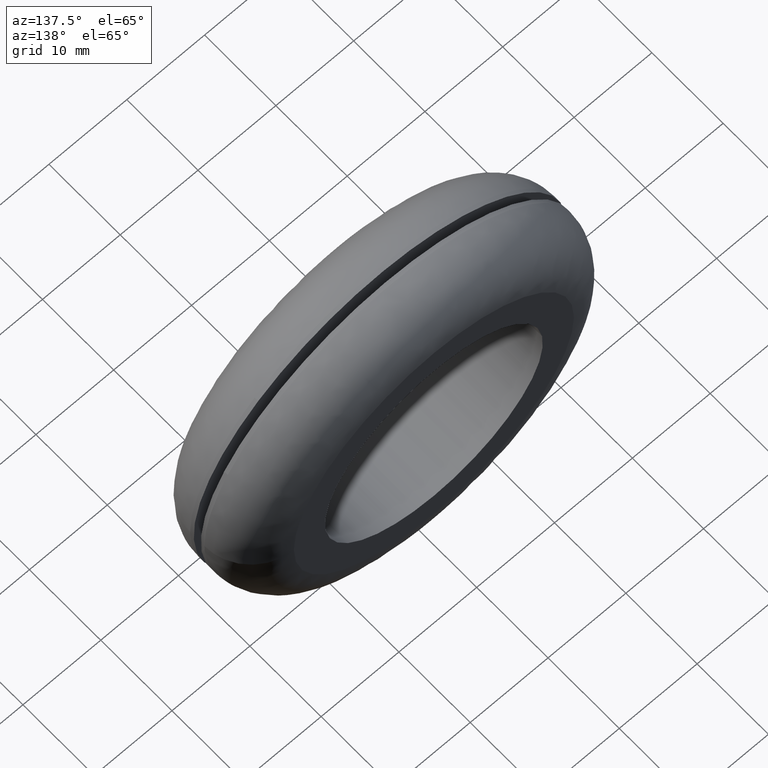
[diagram: clean part render]
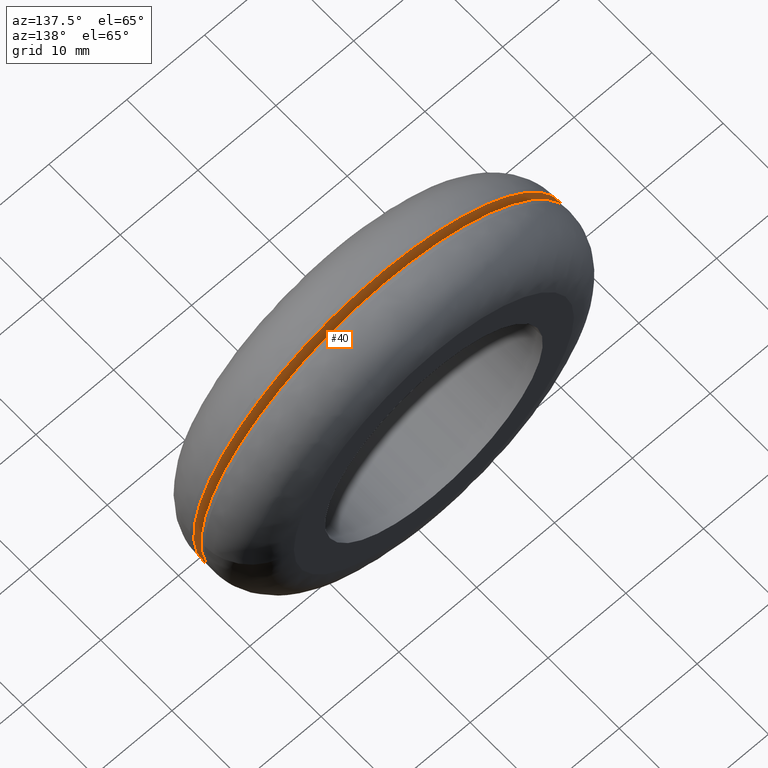
[diagram: same view with one face highlighted and labeled with its STEP entity id]
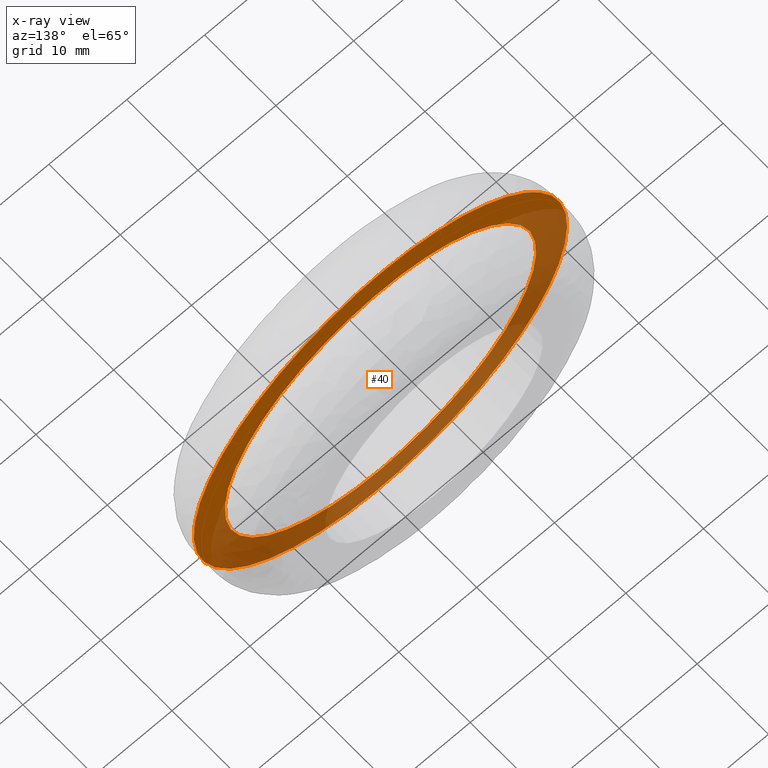
[diagram: x-ray of the same camera — body ghosted, the highlighted face saturated]
A machine part, auxiliary view. The second image highlights one B-rep face of the part: STEP entity #40.
The next image is the same camera in x-ray: the body ghosted, the highlighted face saturated — about 53% of this face is hidden behind the body in this view.
In plain terms, the highlighted planar face has unit normal (0, -1, 0).
Its self-contained STEP definition (entity closure, byte-faithful):
#40=ADVANCED_FACE('',(#57,#58),#56,.F.);
#56=PLANE('',#223);
#57=FACE_OUTER_BOUND('',#224,.T.);
#58=FACE_BOUND('',#225,.T.);
#220=CARTESIAN_POINT('',(-5.47912625963E+001,6.50000000000E+000,5.38951855374E+001));
#221=DIRECTION('',(0.00000000000E+000,-1.00000000000E+000,0.00000000000E+000));
#222=DIRECTION('',(0.00000000000E+000,0.00000000000E+000,-1.00000000000E+000));
#223=AXIS2_PLACEMENT_3D('',#220,#221,#222);
#224=EDGE_LOOP('',(#388,#389,#390));
#225=EDGE_LOOP('',(#391,#392,#393));
#388=ORIENTED_EDGE('',*,*,#488,.F.);
#389=ORIENTED_EDGE('',*,*,#489,.F.);
#390=ORIENTED_EDGE('',*,*,#490,.F.);
#391=ORIENTED_EDGE('',*,*,#491,.T.);
#392=ORIENTED_EDGE('',*,*,#492,.T.);
#393=ORIENTED_EDGE('',*,*,#493,.T.);
#488=EDGE_CURVE('',#538,#539,#540,.T.);
#489=EDGE_CURVE('',#546,#538,#547,.T.);
#490=EDGE_CURVE('',#539,#546,#553,.T.);
#491=EDGE_CURVE('',#559,#560,#561,.T.);
#492=EDGE_CURVE('',#560,#567,#568,.T.);
#493=EDGE_CURVE('',#567,#559,#574,.T.);
#538=VERTEX_POINT('',#876);
#539=VERTEX_POINT('',#877);
#540=CIRCLE('',#881,2.40000000000E+001);
#546=VERTEX_POINT('',#882);
#547=CIRCLE('',#886,2.40000000000E+001);
#553=CIRCLE('',#890,2.40000000000E+001);
#559=VERTEX_POINT('',#891);
#560=VERTEX_POINT('',#892);
#561=CIRCLE('',#896,2.00000000000E+001);
#567=VERTEX_POINT('',#897);
#568=CIRCLE('',#901,2.00000000000E+001);
#574=CIRCLE('',#905,2.00000000000E+001);
#876=CARTESIAN_POINT('',(1.57041517681E+001,6.50000000000E+000,1.81488186185E+001));
#877=CARTESIAN_POINT('',(-1.62141640322E+001,6.50000000000E+000,1.76946569545E+001));
#878=CARTESIAN_POINT('',(8.88178419700E-015,6.50000000000E+000,-6.75015598972E-014));
#879=DIRECTION('',(1.71162307556E-016,-1.00000000000E+000,2.65723874566E-014));
#880=DIRECTION('',(-6.75590168007E-001,1.94755844490E-014,7.37277373104E-001));
#881=AXIS2_PLACEMENT_3D('',#878,#879,#880);
#882=CARTESIAN_POINT('',(-1.57036127523E+001,6.50000000000E+000,-1.81492850141E+001));
#883=CARTESIAN_POINT('',(8.88178419700E-015,6.50000000000E+000,-6.75015598972E-014));
#884=DIRECTION('',(1.71162307556E-016,-1.00000000000E+000,2.65723874566E-014));
#885=DIRECTION('',(-6.75590168007E-001,1.94755844490E-014,7.37277373104E-001));
#886=AXIS2_PLACEMENT_3D('',#883,#884,#885);
#887=CARTESIAN_POINT('',(8.88178419700E-015,6.50000000000E+000,-6.75015598972E-014));
#888=DIRECTION('',(1.71162307556E-016,-1.00000000000E+000,2.65723874566E-014));
#889=DIRECTION('',(-6.75590168007E-001,1.94755844490E-014,7.37277373104E-001));
#890=AXIS2_PLACEMENT_3D('',#887,#888,#889);
#891=CARTESIAN_POINT('',(-1.06581410364E-014,6.50000000000E+000,-2.00000000000E+001));
#892=CARTESIAN_POINT('',(1.98597822210E+001,6.50000000000E+000,-2.36411720022E+000));
#893=CARTESIAN_POINT('',(2.29150032283E-013,6.50000000000E+000,5.06261699229E-013));
#894=DIRECTION('',(-1.37379522067E-014,-1.00000000000E+000,-9.33780645469E-014));
#895=DIRECTION('',(-1.16157083951E-014,9.33780645469E-014,-1.00000000000E+000));
#896=AXIS2_PLACEMENT_3D('',#893,#894,#895);
#897=CARTESIAN_POINT('',(-1.98601905277E+001,6.50000000000E+000,2.36068468951E+000));
#898=CARTESIAN_POINT('',(2.29150032283E-013,6.50000000000E+000,5.06261699229E-013));
#899=DIRECTION('',(-1.37379522067E-014,-1.00000000000E+000,-9.33780645469E-014));
#900=DIRECTION('',(-1.16157083951E-014,9.33780645469E-014,-1.00000000000E+000));
#901=AXIS2_PLACEMENT_3D('',#898,#899,#900);
#902=CARTESIAN_POINT('',(2.29150032283E-013,6.50000000000E+000,5.06261699229E-013));
#903=DIRECTION('',(-1.37379522067E-014,-1.00000000000E+000,-9.33780645469E-014));
#904=DIRECTION('',(-1.16157083951E-014,9.33780645469E-014,-1.00000000000E+000));
#905=AXIS2_PLACEMENT_3D('',#902,#903,#904);